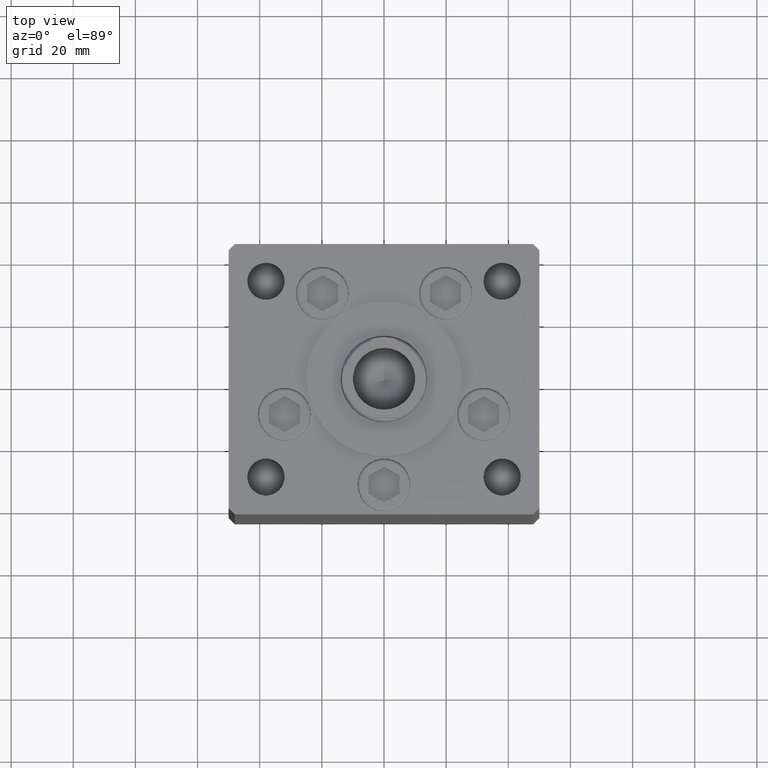
[diagram: clean part render]
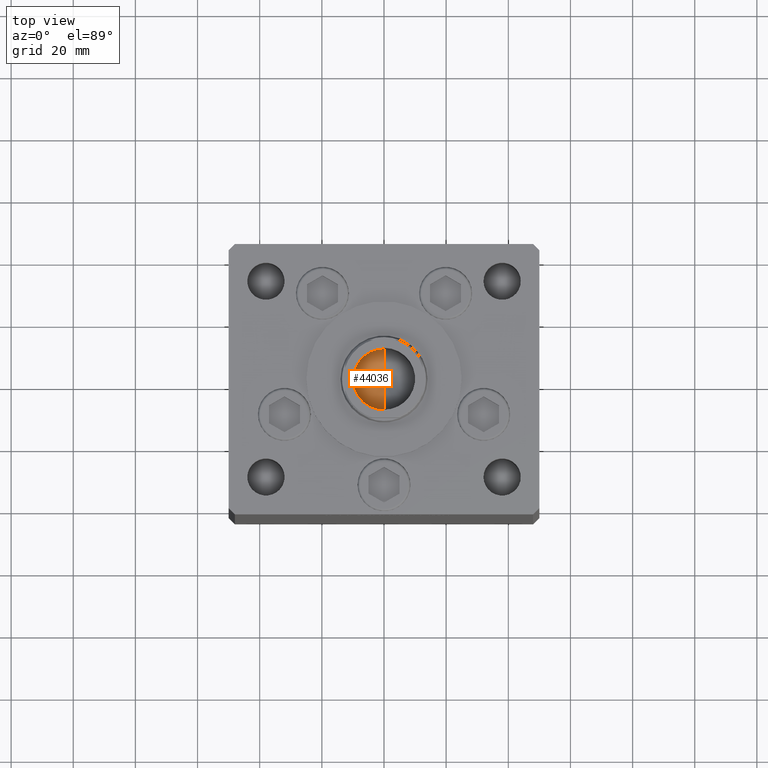
[diagram: same view with one face highlighted and labeled with its STEP entity id]
A machine part, top view. The second image highlights one B-rep face of the part: STEP entity #44036.
In plain terms, the highlighted conical surface has half-angle 59 deg.
Its self-contained STEP definition (entity closure, byte-faithful):
#1294 = AXIS2_PLACEMENT_3D ( 'NONE', #50750, #5631, #21642 ) ;
#1317 = VERTEX_POINT ( 'NONE', #28508 ) ;
#1769 = DIRECTION ( 'NONE',  ( 0.5150380749100549327, 1.049727191138618079E-16, 0.8571673007021118895 ) ) ;
#5505 = EDGE_CURVE ( 'NONE', #1317, #21615, #18670, .T. ) ;
#5631 = DIRECTION ( 'NONE',  ( 1.000000000000000000, -0.000000000000000000, -0.000000000000000000 ) ) ;
#14712 = CIRCLE ( 'NONE', #1294, 9.999999999999994671 ) ;
#15018 = ORIENTED_EDGE ( 'NONE', *, *, #49643, .F. ) ;
#18436 = CARTESIAN_POINT ( 'NONE',  ( -22.39000000000000057, 0.000000000000000000, -9.999999999999994671 ) ) ;
#18670 = LINE ( 'NONE', #27319, #32925 ) ;
#19255 = EDGE_CURVE ( 'NONE', #21615, #32048, #14712, .T. ) ;
#21615 = VERTEX_POINT ( 'NONE', #18436 ) ;
#21642 = DIRECTION ( 'NONE',  ( 0.000000000000000000, 0.000000000000000000, -1.000000000000000000 ) ) ;
#22641 = ORIENTED_EDGE ( 'NONE', *, *, #19255, .T. ) ;
#23343 = CARTESIAN_POINT ( 'NONE',  ( -22.39000000000000057, 0.000000000000000000, 0.000000000000000000 ) ) ;
#23847 = FACE_OUTER_BOUND ( 'NONE', #29327, .T. ) ;
#27319 = CARTESIAN_POINT ( 'NONE',  ( -22.39000000000000057, 0.000000000000000000, -9.999999999999994671 ) ) ;
#27498 = VECTOR ( 'NONE', #1769, 1000.000000000000000 ) ;
#28508 = CARTESIAN_POINT ( 'NONE',  ( -28.39860619027560773, -7.088805540759547745E-15, 0.000000000000000000 ) ) ;
#29327 = EDGE_LOOP ( 'NONE', ( #15018, #40703, #22641 ) ) ;
#29599 = LINE ( 'NONE', #37219, #27498 ) ;
#29984 = CONICAL_SURFACE ( 'NONE', #38376, 9.999999999999994671, 1.029744258676653645 ) ;
#32048 = VERTEX_POINT ( 'NONE', #36830 ) ;
#32925 = VECTOR ( 'NONE', #50958, 1000.000000000000000 ) ;
#36830 = CARTESIAN_POINT ( 'NONE',  ( -22.39000000000000057, 1.224646799147352665E-15, 9.999999999999994671 ) ) ;
#37219 = CARTESIAN_POINT ( 'NONE',  ( -22.39000000000000057, 1.224646799147352665E-15, 9.999999999999994671 ) ) ;
#38376 = AXIS2_PLACEMENT_3D ( 'NONE', #23343, #39090, #51414 ) ;
#39090 = DIRECTION ( 'NONE',  ( 1.000000000000000000, -0.000000000000000000, -0.000000000000000000 ) ) ;
#40703 = ORIENTED_EDGE ( 'NONE', *, *, #5505, .T. ) ;
#44036 = ADVANCED_FACE ( 'NONE', ( #23847 ), #29984, .F. ) ;
#49643 = EDGE_CURVE ( 'NONE', #1317, #32048, #29599, .T. ) ;
#50750 = CARTESIAN_POINT ( 'NONE',  ( -22.39000000000000057, 0.000000000000000000, 0.000000000000000000 ) ) ;
#50958 = DIRECTION ( 'NONE',  ( 0.5150380749100549327, 0.000000000000000000, -0.8571673007021118895 ) ) ;
#51414 = DIRECTION ( 'NONE',  ( 0.000000000000000000, 0.000000000000000000, -1.000000000000000000 ) ) ;